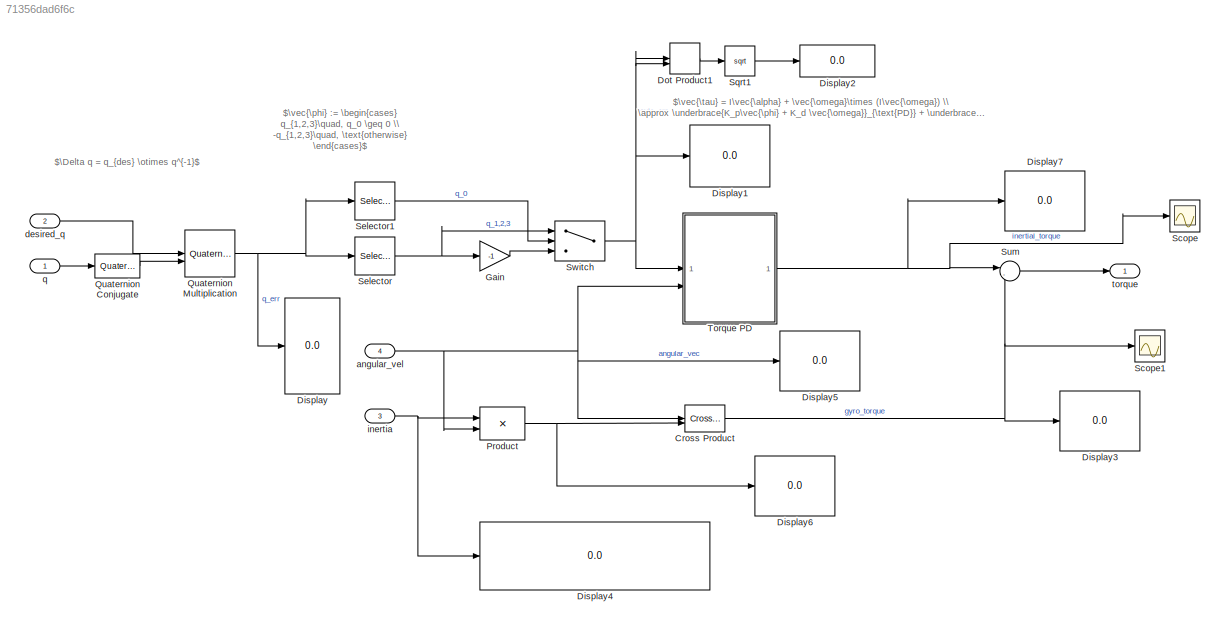
MODEL slx_71356dad6f6c
KIND model
CONFIG AbsTol = auto
CONFIG EnableMultiTasking = off
CONFIG FixedStep = 0.001
CONFIG MaxStep = auto
CONFIG MinStep = auto
CONFIG RelTol = 1e-3
CONFIG SampleTimeConstraint = Unconstrained
CONFIG SolverName = FixedStepAuto
CONFIG StartTime = 0.0
CONFIG StopTime = 10.0
BLOCK [Reference] Cross Product  REF=matrix_library/Cross Product
  LibrarySourceBlock = simulink/Matrix\nOperations/Cross Product
  SourceBlock = matrix_library/Cross Product
  SourceType = CrossProduct
BLOCK [Display] Display
  Decimation = 1
BLOCK [Display] Display1
  Decimation = 1
BLOCK [Display] Display2
  Decimation = 1
BLOCK [Display] Display3
  Decimation = 1
BLOCK [Display] Display4
  Decimation = 1
BLOCK [Display] Display5
  Decimation = 1
BLOCK [Display] Display6
  Decimation = 1
BLOCK [Display] Display7
  Decimation = 1
BLOCK [DotProduct] Dot Product1
  OutDataTypeStr = Inherit: Inherit via internal rule
BLOCK [Gain] Gain
  Gain = -1
BLOCK [Product] Product
  Multiplication = Matrix(*)
BLOCK [Reference] Quaternion Conjugate  REF=aerolibutil/Quaternion
Conjugate
  SourceBlock = aerolibutil/Quaternion\nConjugate
  SourceType = Quaternion Conjugate
BLOCK [Reference] Quaternion Multiplication  REF=aerolibutil/Quaternion
Multiplication
  NameLocation = top
  SourceBlock = aerolibutil/Quaternion\nMultiplication
  SourceType = Quaternion Multiplication
BLOCK [Scope] Scope
  DataLoggingVariableName = ScopeData1
  Floating = off
  GraphicalSettings = {"GraphicalSettings":{"LegacySettings":true,"Style":{"Style":{"PlotType":"Auto"}}}}
  NumInputPorts = 1
  WasSavedAsWebScope = on
BLOCK [Scope] Scope1
  DataLoggingVariableName = ScopeData2
  Floating = off
  GraphicalSettings = {"GraphicalSettings":{"LegacySettings":true,"Style":{"Style":{"PlotType":"Auto"}}}}
  NumInputPorts = 1
  WasSavedAsWebScope = on
BLOCK [Selector] Selector
  IndexOptions = Index vector (dialog)
  Indices = [2 3 4]
  InputPortWidth = 4
  OutputSizes = 1
BLOCK [Selector] Selector1
  IndexOptions = Index vector (dialog)
  Indices = 1
  InputPortWidth = 4
  OutputSizes = 1
BLOCK [Sqrt] Sqrt1
BLOCK [Sum] Sum
  Inputs = |-+
BLOCK [Switch] Switch
  InputSameDT = off
  SaturateOnIntegerOverflow = off
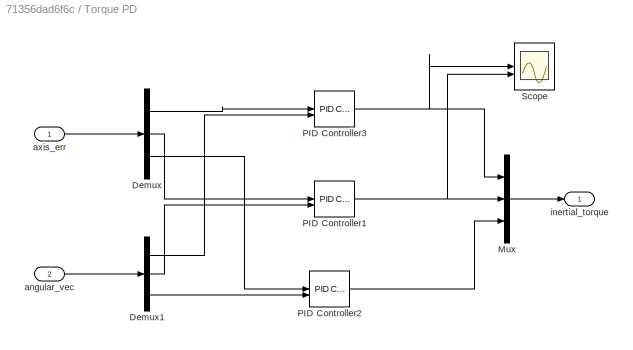
BLOCK [SubSystem] Torque PD
BLOCK [Demux] Torque PD/Demux
  Outputs = 3
BLOCK [Demux] Torque PD/Demux1
  Outputs = 3
BLOCK [Mux] Torque PD/Mux
  DisplayOption = bar
  Inputs = 3
BLOCK [Reference] Torque PD/PID Controller1  REF=slpidlib/PID Controller
  LibrarySourceBlock = simulink/Continuous/PID Controller
  SourceBlock = slpidlib/PID Controller
  SourceType = PID 1dof
BLOCK [Reference] Torque PD/PID Controller2  REF=slpidlib/PID Controller
  LibrarySourceBlock = simulink/Continuous/PID Controller
  SourceBlock = slpidlib/PID Controller
  SourceType = PID 1dof
BLOCK [Reference] Torque PD/PID Controller3  REF=slpidlib/PID Controller
  LibrarySourceBlock = simulink/Continuous/PID Controller
  SourceBlock = slpidlib/PID Controller
  SourceType = PID 1dof
BLOCK [Scope] Torque PD/Scope
  ActiveDisplayYMaximum = 0.051198361947262412
  ActiveDisplayYMinimum = -0.051146207440445846
  Floating = off
  GraphicalSettings = {"Style":{"BackgroundColor":[0.12941176470588237,0.12941176470588237,0.12941176470588237],"AxesColor":[0.07058823529411765,0.07058823529411765,0.07058823529411765],"LabelsColor":[0.8509803921568627,0.8509803921568627,0.8509803921568627],"PreserveColors":false,"Visible":[true,true],"LineStyle":["-","-"],"LineWidth":[1.5,1.5],"BarWidth":[0.9,0.9],"LineColor":["auto","auto"],"LineFaceAlpha":[1,1],"Li...<+2156ch>
  MultipleDisplayCache = [{"MaxYLimMag":0.021891067879716255,"MaxYLimReal":0.051198361947262412,"MinYLimMag":0,"MinYLimReal":-0.051146207440445846,"PlotAsMagnitudePhase":false,"ShowGrid":true,"ShowLegend":false,"Title":"%<SignalLabel>","YLabel":""}]
  NumInputPorts = 2
  ScopeFrameLocation = window
  Visible = on
  WasSavedAsWebScope = on
  WindowPosition = [248.000000,-3.000000,1161.000000,793.000000,]
BLOCK [Inport] Torque PD/angular_vec
  Port = 2
BLOCK [Inport] Torque PD/axis_err
BLOCK [Outport] Torque PD/inertial_torque
BLOCK [Inport] angular_vel
  Port = 4
  PortDimensions = 3
  Unit = rad/s
BLOCK [Inport] desired_q
  Port = 2
  PortDimensions = 4
BLOCK [Inport] inertia
  Port = 3
  PortDimensions = [3 3]
  Unit = kg*m^2
BLOCK [Inport] q
  PortDimensions = 4
BLOCK [Outport] torque
ANNOTATION (root): $\Delta q = q_{des} \otimes q^{-1}$
ANNOTATION (root): $\vec{\phi} := \begin{cases} q_{1,2,3}\quad, q_0 \geq 0 \\ -q_{1,2,3}\quad, \text{otherwise} \end{cases}$
ANNOTATION (root): $\vec{\tau} = I\vec{\alpha} + \vec{\omega}\times (I\vec{\omega}) \\ \approx \underbrace{K_p\vec{\phi} + K_d \vec{\omega}}_{\text{PD}} + \underbrace{\vec{\omega}\times (I\vec{\omega})}_{\text{gyro term}}$
NET Cross Product:1 -> Display3:1, Scope1:1, Sum:2
LINE Dot Product1:1 -> Sqrt1:1
LINE Gain:1 -> Switch:3
NET Product:1 -> Cross Product:2, Display6:1
LINE Quaternion Conjugate:1 -> Quaternion Multiplication:2
NET Quaternion Multiplication:1 -> Display:1, Selector1:1, Selector:1
LINE Selector1:1 -> Switch:2
NET Selector:1 -> Gain:1, Switch:1
LINE Sqrt1:1 -> Display2:1
LINE Sum:1 -> torque:1
NET Switch:1 -> Display1:1, Dot Product1:1, Dot Product1:2, Torque PD:1
LINE Torque PD/Demux1:1 -> Torque PD/PID Controller3:2
LINE Torque PD/Demux1:2 -> Torque PD/PID Controller1:2
LINE Torque PD/Demux1:3 -> Torque PD/PID Controller2:2
LINE Torque PD/Demux:1 -> Torque PD/PID Controller3:1
LINE Torque PD/Demux:2 -> Torque PD/PID Controller1:1
LINE Torque PD/Demux:3 -> Torque PD/PID Controller2:1
LINE Torque PD/Mux:1 -> Torque PD/inertial_torque:1
NET Torque PD/PID Controller1:1 -> Torque PD/Mux:2, Torque PD/Scope:2
LINE Torque PD/PID Controller2:1 -> Torque PD/Mux:3
NET Torque PD/PID Controller3:1 -> Torque PD/Mux:1, Torque PD/Scope:1
LINE Torque PD/angular_vec:1 -> Torque PD/Demux1:1
LINE Torque PD/axis_err:1 -> Torque PD/Demux:1
NET Torque PD:1 -> Display7:1, Scope:1, Sum:1
NET angular_vel:1 -> Cross Product:1, Display5:1, Product:2, Torque PD:2
LINE desired_q:1 -> Quaternion Multiplication:1
NET inertia:1 -> Display4:1, Product:1
LINE q:1 -> Quaternion Conjugate:1
note: NET lines group one-source signal fan-out (src -> all destinations, sorted); 1:1 wires keep LINE
